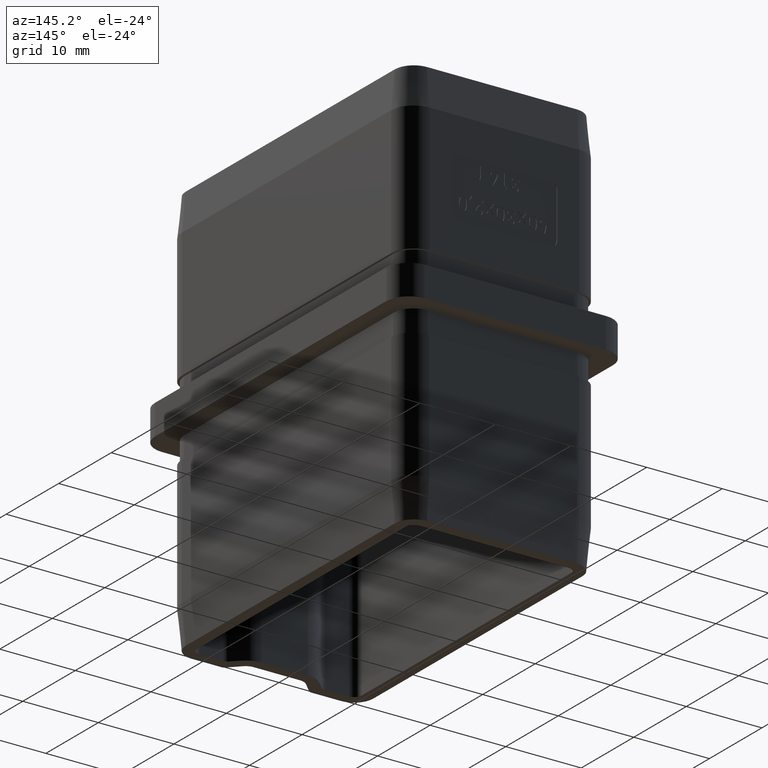
[diagram: clean part render]
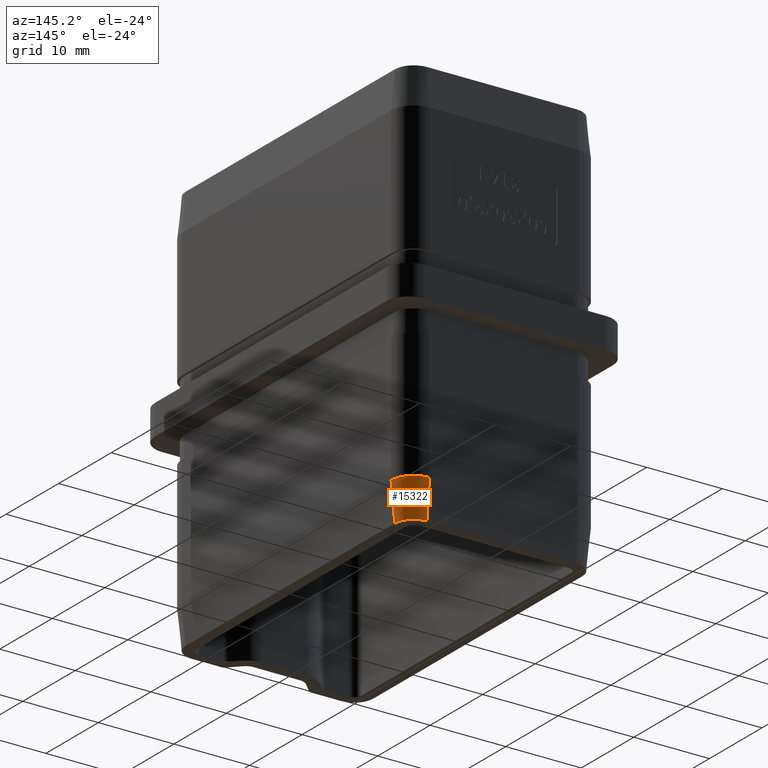
[diagram: same view with one face highlighted and labeled with its STEP entity id]
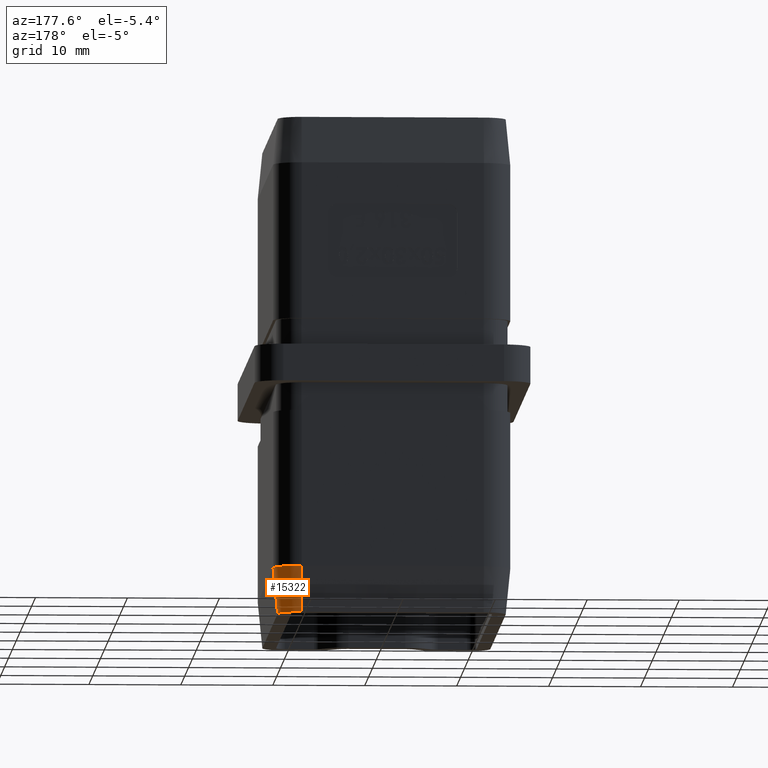
[diagram: same view with one face highlighted and labeled with its STEP entity id]
A machine part, auxiliary view. The second image highlights one B-rep face of the part: STEP entity #15322.
A second angle (auxiliary view) of the same face is appended — the face is thin or edge-on in the first view.
In plain terms, the highlighted conical surface has half-angle 5.711 deg.
Its self-contained STEP definition (entity closure, byte-faithful):
#33 = CARTESIAN_POINT ( 'NONE',  ( 12.89999999999999300, 19.90000000000000200, -22.00000000000000000 ) ) ;
#2720 = LINE ( 'NONE', #3835, #18650 ) ;
#3246 = VERTEX_POINT ( 'NONE', #17736 ) ;
#3835 = CARTESIAN_POINT ( 'NONE',  ( 12.39999999999999000, 19.90000000000000200, -26.99999999999999600 ) ) ;
#5439 = DIRECTION ( 'NONE',  ( 0.0000000000000000000, 0.0000000000000000000, -1.000000000000000000 ) ) ;
#5853 = VECTOR ( 'NONE', #16969, 1000.000000000000200 ) ;
#6520 = CARTESIAN_POINT ( 'NONE',  ( 9.899999999999991500, 22.40000000000000200, -26.99999999999999600 ) ) ;
#6788 = EDGE_CURVE ( 'NONE', #3246, #7191, #24231, .T. ) ;
#7191 = VERTEX_POINT ( 'NONE', #12509 ) ;
#7662 = EDGE_CURVE ( 'NONE', #22894, #22534, #14083, .T. ) ;
#8904 = CARTESIAN_POINT ( 'NONE',  ( 9.899999999999991500, 19.90000000000000600, -26.99999999999999600 ) ) ;
#8993 = DIRECTION ( 'NONE',  ( 1.000000000000000000, 0.0000000000000000000, 0.0000000000000000000 ) ) ;
#9196 = EDGE_LOOP ( 'NONE', ( #19055, #26816, #14943, #17276 ) ) ;
#10203 = AXIS2_PLACEMENT_3D ( 'NONE', #8904, #23364, #8993 ) ;
#11678 = EDGE_CURVE ( 'NONE', #3246, #22894, #23811, .T. ) ;
#11863 = DIRECTION ( 'NONE',  ( 0.09950371902099974800, 6.092845550116246800E-018, 0.9950371902099890400 ) ) ;
#12509 = CARTESIAN_POINT ( 'NONE',  ( 12.39999999999999000, 19.90000000000000200, -26.99999999999999600 ) ) ;
#13566 = CARTESIAN_POINT ( 'NONE',  ( 9.899999999999991500, 19.90000000000000600, -22.00000000000000000 ) ) ;
#14083 = CIRCLE ( 'NONE', #14127, 3.000000000000002700 ) ;
#14127 = AXIS2_PLACEMENT_3D ( 'NONE', #13566, #5439, #20000 ) ;
#14231 = CONICAL_SURFACE ( 'NONE', #10203, 2.499999999999998700, 0.09966865249116285700 ) ;
#14943 = ORIENTED_EDGE ( 'NONE', *, *, #23495, .F. ) ;
#15322 = ADVANCED_FACE ( 'NONE', ( #17514 ), #14231, .T. ) ;
#16969 = DIRECTION ( 'NONE',  ( 0.0000000000000000000, 0.09950371902099974800, 0.9950371902099890400 ) ) ;
#17238 = DIRECTION ( 'NONE',  ( -1.000000000000000000, 0.0000000000000000000, 0.0000000000000000000 ) ) ;
#17276 = ORIENTED_EDGE ( 'NONE', *, *, #6788, .F. ) ;
#17514 = FACE_OUTER_BOUND ( 'NONE', #9196, .T. ) ;
#17736 = CARTESIAN_POINT ( 'NONE',  ( 9.899999999999987900, 22.39999999999999900, -27.00000000000000000 ) ) ;
#18650 = VECTOR ( 'NONE', #11863, 1000.000000000000200 ) ;
#19055 = ORIENTED_EDGE ( 'NONE', *, *, #11678, .T. ) ;
#19255 = DIRECTION ( 'NONE',  ( 0.0000000000000000000, 0.0000000000000000000, -1.000000000000000000 ) ) ;
#20000 = DIRECTION ( 'NONE',  ( -1.000000000000000000, 0.0000000000000000000, 0.0000000000000000000 ) ) ;
#22534 = VERTEX_POINT ( 'NONE', #33 ) ;
#22894 = VERTEX_POINT ( 'NONE', #22896 ) ;
#22896 = CARTESIAN_POINT ( 'NONE',  ( 9.899999999999991500, 22.90000000000000600, -22.00000000000000000 ) ) ;
#23353 = CARTESIAN_POINT ( 'NONE',  ( 9.899999999999991500, 19.90000000000000600, -26.99999999999999600 ) ) ;
#23364 = DIRECTION ( 'NONE',  ( -0.0000000000000000000, -0.0000000000000000000, 1.000000000000000000 ) ) ;
#23495 = EDGE_CURVE ( 'NONE', #7191, #22534, #2720, .T. ) ;
#23811 = LINE ( 'NONE', #6520, #5853 ) ;
#24231 = CIRCLE ( 'NONE', #25873, 2.499999999999998700 ) ;
#25873 = AXIS2_PLACEMENT_3D ( 'NONE', #23353, #19255, #17238 ) ;
#26816 = ORIENTED_EDGE ( 'NONE', *, *, #7662, .T. ) ;